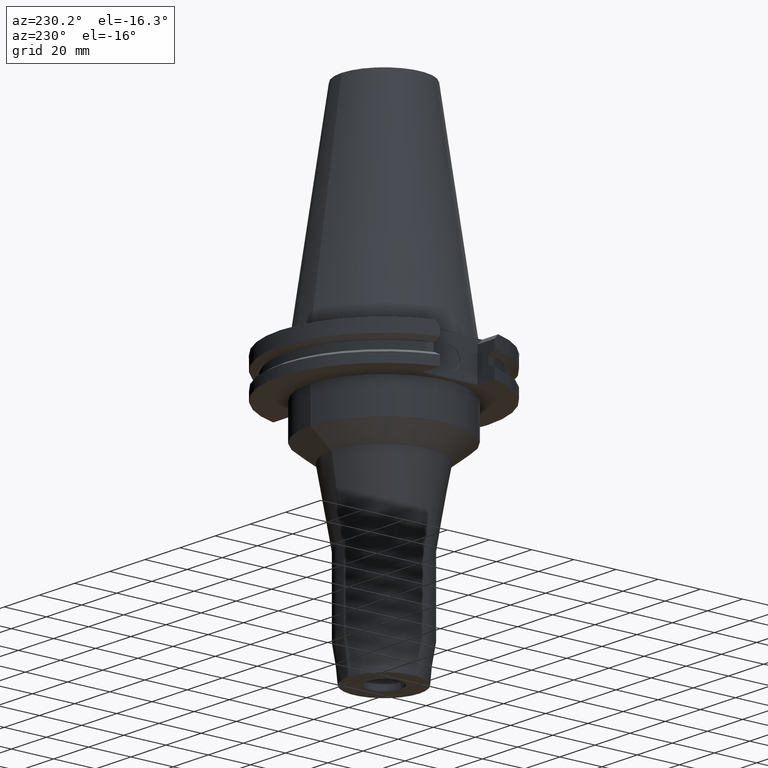
[diagram: clean part render]
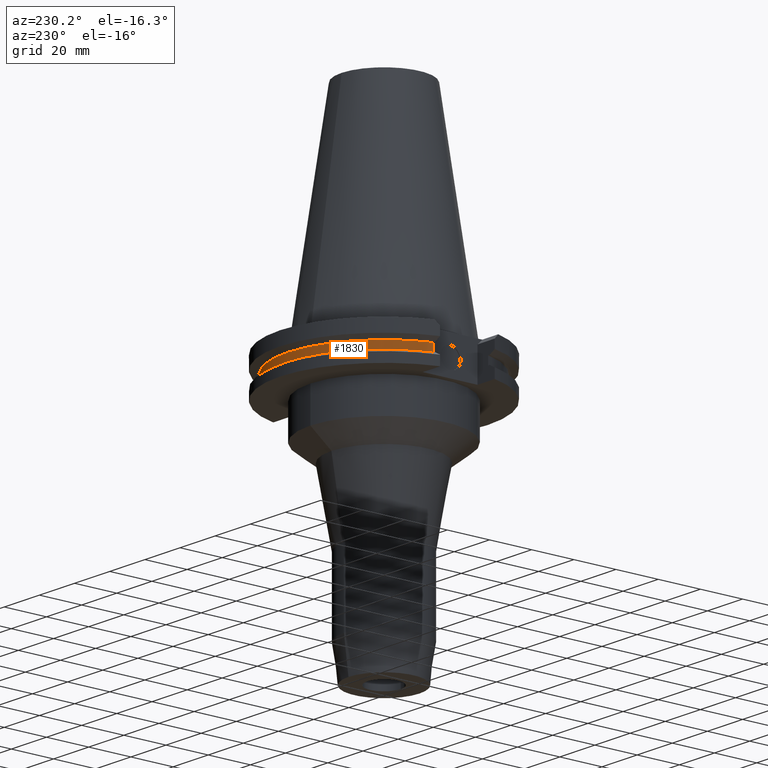
[diagram: same view with one face highlighted and labeled with its STEP entity id]
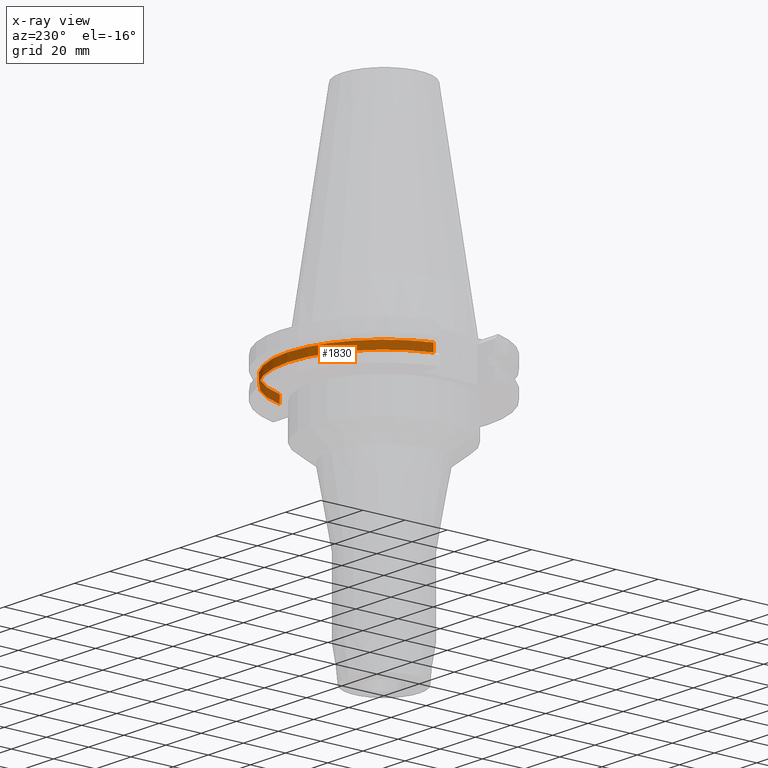
[diagram: x-ray of the same camera — body ghosted, the highlighted face saturated]
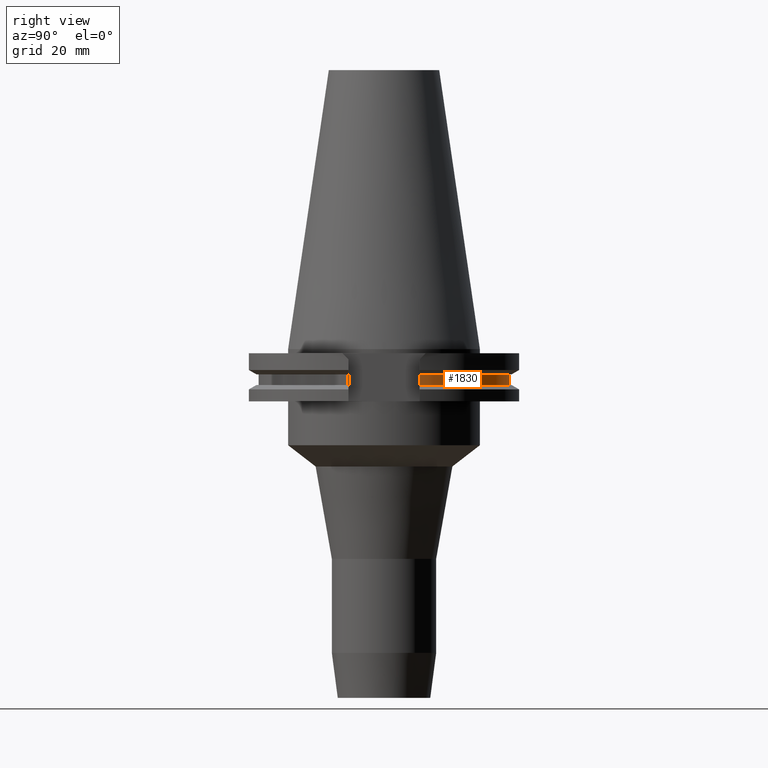
[diagram: same view with one face highlighted and labeled with its STEP entity id]
A machine part, auxiliary view. The second image highlights one B-rep face of the part: STEP entity #1830.
The next image is the same camera in x-ray: the body ghosted, the highlighted face saturated — about 5% of this face is hidden behind the body in this view.
A second angle (right view) of the same face is appended — the face is thin or edge-on in the first view.
In plain terms, the highlighted cylindrical surface (partial cylindrical patch) has radius 45.645 mm, axis along (0, 0, 1).
Its self-contained STEP definition (entity closure, byte-faithful):
#401=CARTESIAN_POINT('',(0.E0,0.E0,-1.30475E1));
#402=DIRECTION('',(0.E0,0.E0,1.E0));
#403=DIRECTION('',(9.588773428655E-1,2.838207908862E-1,0.E0));
#404=AXIS2_PLACEMENT_3D('',#401,#402,#403);
#409=CARTESIAN_POINT('',(0.E0,0.E0,-1.30475E1));
#410=DIRECTION('',(0.E0,0.E0,1.E0));
#411=DIRECTION('',(0.E0,1.E0,0.E0));
#412=AXIS2_PLACEMENT_3D('',#409,#410,#411);
#440=DIRECTION('',(0.E0,0.E0,1.E0));
#441=VECTOR('',#440,3.84E0);
#442=CARTESIAN_POINT('',(4.376795631509E1,1.2955E1,-1.30475E1));
#443=LINE('',#442,#441);
#447=DIRECTION('',(0.E0,0.E0,-1.E0));
#448=VECTOR('',#447,3.84E0);
#449=CARTESIAN_POINT('',(-4.376795631509E1,1.2955E1,-9.2075E0));
#450=LINE('',#449,#448);
#477=CARTESIAN_POINT('',(0.E0,0.E0,-9.2075E0));
#478=DIRECTION('',(0.E0,0.E0,-1.E0));
#479=DIRECTION('',(-9.588773428655E-1,2.838207908862E-1,0.E0));
#480=AXIS2_PLACEMENT_3D('',#477,#478,#479);
#485=CARTESIAN_POINT('',(0.E0,0.E0,-9.2075E0));
#486=DIRECTION('',(0.E0,0.E0,-1.E0));
#487=DIRECTION('',(0.E0,1.E0,0.E0));
#488=AXIS2_PLACEMENT_3D('',#485,#486,#487);
#1425=CARTESIAN_POINT('',(4.376795631509E1,1.2955E1,-9.2075E0));
#1426=VERTEX_POINT('',#1425);
#1427=CARTESIAN_POINT('',(4.376795631509E1,1.2955E1,-1.30475E1));
#1428=VERTEX_POINT('',#1427);
#1479=CARTESIAN_POINT('',(-4.376795631509E1,1.2955E1,-1.30475E1));
#1480=VERTEX_POINT('',#1479);
#1481=CARTESIAN_POINT('',(-4.376795631509E1,1.2955E1,-9.2075E0));
#1482=VERTEX_POINT('',#1481);
#1491=CARTESIAN_POINT('',(2.461224688054E-14,4.5645E1,-1.30475E1));
#1492=VERTEX_POINT('',#1491);
#1495=CARTESIAN_POINT('',(-2.461224688054E-14,4.5645E1,-9.2075E0));
#1496=VERTEX_POINT('',#1495);
#1815=CARTESIAN_POINT('',(0.E0,0.E0,-1.3843E2));
#1816=DIRECTION('',(0.E0,0.E0,1.E0));
#1817=DIRECTION('',(0.E0,1.E0,0.E0));
#1818=AXIS2_PLACEMENT_3D('',#1815,#1816,#1817);
#1819=CYLINDRICAL_SURFACE('',#1818,4.5645E1);
#1820=ORIENTED_EDGE('',*,*,#1662,.T.);
#1822=ORIENTED_EDGE('',*,*,#1821,.F.);
#1824=ORIENTED_EDGE('',*,*,#1823,.F.);
#1825=ORIENTED_EDGE('',*,*,#1755,.T.);
#1826=ORIENTED_EDGE('',*,*,#1807,.F.);
#1827=ORIENTED_EDGE('',*,*,#1805,.F.);
#1828=EDGE_LOOP('',(#1820,#1822,#1824,#1825,#1826,#1827));
#1829=FACE_OUTER_BOUND('',#1828,.F.);
#405=CIRCLE('',#404,4.5645E1);
#413=CIRCLE('',#412,4.5645E1);
#481=CIRCLE('',#480,4.5645E1);
#489=CIRCLE('',#488,4.5645E1);
#1662=EDGE_CURVE('',#1428,#1426,#443,.T.);
#1755=EDGE_CURVE('',#1482,#1480,#450,.T.);
#1805=EDGE_CURVE('',#1428,#1492,#405,.T.);
#1807=EDGE_CURVE('',#1492,#1480,#413,.T.);
#1821=EDGE_CURVE('',#1496,#1426,#489,.T.);
#1823=EDGE_CURVE('',#1482,#1496,#481,.T.);
#1830=ADVANCED_FACE('',(#1829),#1819,.T.);